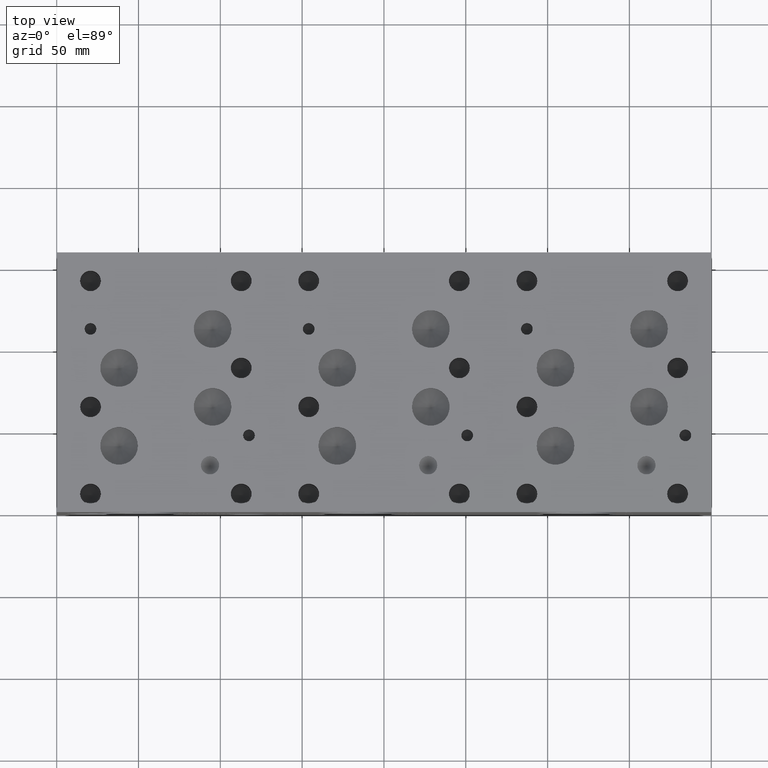
[diagram: clean part render]
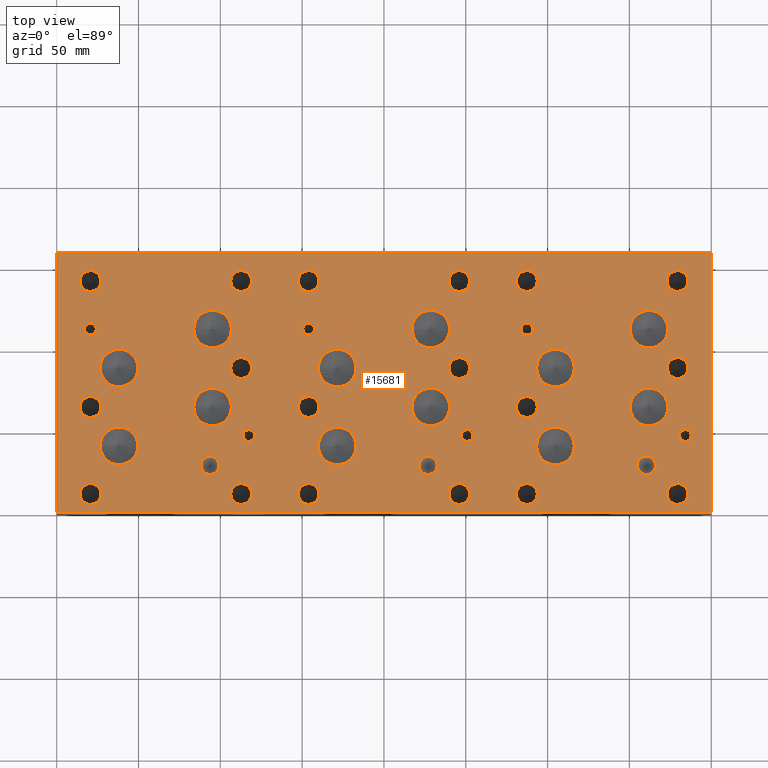
[diagram: same view with one face highlighted and labeled with its STEP entity id]
A machine part, top view. The second image highlights one B-rep face of the part: STEP entity #15681.
In plain terms, the highlighted planar face has unit normal (0, 0, 1).
Its self-contained STEP definition (entity closure, byte-faithful):
#486=CIRCLE('',#16111,5.5626);
#487=CIRCLE('',#16112,5.5626);
#490=CIRCLE('',#16117,5.5626);
#491=CIRCLE('',#16118,5.5626);
#713=CIRCLE('',#16497,5.55625);
#714=CIRCLE('',#16498,5.55625);
#717=CIRCLE('',#16503,11.50874);
#718=CIRCLE('',#16504,11.50874);
#721=CIRCLE('',#16509,11.5062);
#722=CIRCLE('',#16510,11.5062);
#725=CIRCLE('',#16515,11.5062);
#726=CIRCLE('',#16516,11.5062);
#729=CIRCLE('',#16521,11.5062);
#730=CIRCLE('',#16522,11.5062);
#733=CIRCLE('',#16527,11.5062);
#734=CIRCLE('',#16528,11.5062);
#737=CIRCLE('',#16533,11.5062);
#738=CIRCLE('',#16534,11.5062);
#741=CIRCLE('',#16539,11.5062);
#742=CIRCLE('',#16540,11.5062);
#745=CIRCLE('',#16545,11.5062);
#746=CIRCLE('',#16546,11.5062);
#749=CIRCLE('',#16551,11.5062);
#750=CIRCLE('',#16552,11.5062);
#753=CIRCLE('',#16557,11.5062);
#754=CIRCLE('',#16558,11.5062);
#757=CIRCLE('',#16563,11.5062);
#758=CIRCLE('',#16564,11.5062);
#761=CIRCLE('',#16569,11.5062);
#762=CIRCLE('',#16570,11.5062);
#765=CIRCLE('',#16575,3.5687);
#766=CIRCLE('',#16576,3.5687);
#769=CIRCLE('',#16581,3.5687);
#770=CIRCLE('',#16582,3.5687);
#773=CIRCLE('',#16587,3.5687);
#774=CIRCLE('',#16588,3.5687);
#777=CIRCLE('',#16593,3.5687);
#778=CIRCLE('',#16594,3.5687);
#781=CIRCLE('',#16599,3.5687);
#782=CIRCLE('',#16600,3.5687);
#785=CIRCLE('',#16605,3.5687);
#786=CIRCLE('',#16606,3.5687);
#792=CIRCLE('',#16615,6.35);
#793=CIRCLE('',#16616,6.35);
#799=CIRCLE('',#16626,6.35);
#800=CIRCLE('',#16627,6.35);
#806=CIRCLE('',#16637,6.35);
#807=CIRCLE('',#16638,6.35);
#813=CIRCLE('',#16648,6.35);
#814=CIRCLE('',#16649,6.35);
#820=CIRCLE('',#16659,6.35);
#821=CIRCLE('',#16660,6.35);
#827=CIRCLE('',#16670,6.35);
#828=CIRCLE('',#16671,6.35);
#834=CIRCLE('',#16681,6.35);
#835=CIRCLE('',#16682,6.35);
#841=CIRCLE('',#16692,6.35);
#842=CIRCLE('',#16693,6.35);
#848=CIRCLE('',#16703,6.35);
#849=CIRCLE('',#16704,6.35);
#855=CIRCLE('',#16714,6.35);
#856=CIRCLE('',#16715,6.35);
#862=CIRCLE('',#16725,6.35);
#863=CIRCLE('',#16726,6.35);
#869=CIRCLE('',#16736,6.35);
#870=CIRCLE('',#16737,6.35);
#876=CIRCLE('',#16747,6.35);
#877=CIRCLE('',#16748,6.35);
#883=CIRCLE('',#16758,6.35);
#884=CIRCLE('',#16759,6.35);
#890=CIRCLE('',#16769,6.35);
#891=CIRCLE('',#16770,6.35);
#897=CIRCLE('',#16780,6.35);
#898=CIRCLE('',#16781,6.35);
#904=CIRCLE('',#16791,6.35);
#905=CIRCLE('',#16792,6.35);
#911=CIRCLE('',#16802,6.35);
#912=CIRCLE('',#16803,6.35);
#1401=FACE_BOUND('',#3199,.T.);
#1402=FACE_BOUND('',#3200,.T.);
#1403=FACE_BOUND('',#3201,.T.);
#1404=FACE_BOUND('',#3202,.T.);
#1405=FACE_BOUND('',#3203,.T.);
#1406=FACE_BOUND('',#3204,.T.);
#1407=FACE_BOUND('',#3205,.T.);
#1408=FACE_BOUND('',#3206,.T.);
#1409=FACE_BOUND('',#3207,.T.);
#1410=FACE_BOUND('',#3208,.T.);
#1411=FACE_BOUND('',#3209,.T.);
#1412=FACE_BOUND('',#3210,.T.);
#1413=FACE_BOUND('',#3211,.T.);
#1414=FACE_BOUND('',#3212,.T.);
#1415=FACE_BOUND('',#3213,.T.);
#1416=FACE_BOUND('',#3214,.T.);
#1417=FACE_BOUND('',#3215,.T.);
#1418=FACE_BOUND('',#3216,.T.);
#1419=FACE_BOUND('',#3217,.T.);
#1420=FACE_BOUND('',#3218,.T.);
#1421=FACE_BOUND('',#3219,.T.);
#1422=FACE_BOUND('',#3220,.T.);
#1423=FACE_BOUND('',#3221,.T.);
#1424=FACE_BOUND('',#3222,.T.);
#1425=FACE_BOUND('',#3223,.T.);
#1426=FACE_BOUND('',#3224,.T.);
#1427=FACE_BOUND('',#3225,.T.);
#1428=FACE_BOUND('',#3226,.T.);
#1429=FACE_BOUND('',#3227,.T.);
#1430=FACE_BOUND('',#3228,.T.);
#1431=FACE_BOUND('',#3229,.T.);
#1432=FACE_BOUND('',#3230,.T.);
#1433=FACE_BOUND('',#3231,.T.);
#1434=FACE_BOUND('',#3232,.T.);
#1435=FACE_BOUND('',#3233,.T.);
#1436=FACE_BOUND('',#3234,.T.);
#1437=FACE_BOUND('',#3235,.T.);
#1438=FACE_BOUND('',#3236,.T.);
#1439=FACE_BOUND('',#3237,.T.);
#2261=FACE_OUTER_BOUND('',#3198,.T.);
#3198=EDGE_LOOP('',(#13855,#13856,#13857,#13858));
#3199=EDGE_LOOP('',(#13859,#13860));
#3200=EDGE_LOOP('',(#13861,#13862));
#3201=EDGE_LOOP('',(#13863,#13864));
#3202=EDGE_LOOP('',(#13865,#13866));
#3203=EDGE_LOOP('',(#13867,#13868));
#3204=EDGE_LOOP('',(#13869,#13870));
#3205=EDGE_LOOP('',(#13871,#13872));
#3206=EDGE_LOOP('',(#13873,#13874));
#3207=EDGE_LOOP('',(#13875,#13876));
#3208=EDGE_LOOP('',(#13877,#13878));
#3209=EDGE_LOOP('',(#13879,#13880));
#3210=EDGE_LOOP('',(#13881,#13882));
#3211=EDGE_LOOP('',(#13883,#13884));
#3212=EDGE_LOOP('',(#13885,#13886));
#3213=EDGE_LOOP('',(#13887,#13888));
#3214=EDGE_LOOP('',(#13889,#13890));
#3215=EDGE_LOOP('',(#13891,#13892));
#3216=EDGE_LOOP('',(#13893,#13894));
#3217=EDGE_LOOP('',(#13895,#13896));
#3218=EDGE_LOOP('',(#13897,#13898));
#3219=EDGE_LOOP('',(#13899,#13900));
#3220=EDGE_LOOP('',(#13901,#13902));
#3221=EDGE_LOOP('',(#13903,#13904));
#3222=EDGE_LOOP('',(#13905,#13906));
#3223=EDGE_LOOP('',(#13907,#13908));
#3224=EDGE_LOOP('',(#13909,#13910));
#3225=EDGE_LOOP('',(#13911,#13912));
#3226=EDGE_LOOP('',(#13913,#13914));
#3227=EDGE_LOOP('',(#13915,#13916));
#3228=EDGE_LOOP('',(#13917,#13918));
#3229=EDGE_LOOP('',(#13919,#13920));
#3230=EDGE_LOOP('',(#13921,#13922));
#3231=EDGE_LOOP('',(#13923,#13924));
#3232=EDGE_LOOP('',(#13925,#13926));
#3233=EDGE_LOOP('',(#13927,#13928));
#3234=EDGE_LOOP('',(#13929,#13930));
#3235=EDGE_LOOP('',(#13931,#13932));
#3236=EDGE_LOOP('',(#13933,#13934));
#3237=EDGE_LOOP('',(#13935,#13936));
#3274=LINE('',#20443,#4601);
#4246=LINE('',#25506,#5573);
#4304=LINE('',#25777,#5631);
#4565=LINE('',#27308,#5892);
#4601=VECTOR('',#16874,10.);
#5573=VECTOR('',#18496,10.);
#5631=VECTOR('',#18608,10.);
#5892=VECTOR('',#20359,10.);
#5917=VERTEX_POINT('',#20440);
#5918=VERTEX_POINT('',#20442);
#6820=VERTEX_POINT('',#25504);
#6878=VERTEX_POINT('',#25776);
#6924=VERTEX_POINT('',#25907);
#6925=VERTEX_POINT('',#25908);
#6929=VERTEX_POINT('',#25920);
#6930=VERTEX_POINT('',#25921);
#7168=VERTEX_POINT('',#26670);
#7169=VERTEX_POINT('',#26671);
#7173=VERTEX_POINT('',#26683);
#7174=VERTEX_POINT('',#26684);
#7178=VERTEX_POINT('',#26696);
#7179=VERTEX_POINT('',#26697);
#7183=VERTEX_POINT('',#26709);
#7184=VERTEX_POINT('',#26710);
#7188=VERTEX_POINT('',#26722);
#7189=VERTEX_POINT('',#26723);
#7193=VERTEX_POINT('',#26735);
#7194=VERTEX_POINT('',#26736);
#7198=VERTEX_POINT('',#26748);
#7199=VERTEX_POINT('',#26749);
#7203=VERTEX_POINT('',#26761);
#7204=VERTEX_POINT('',#26762);
#7208=VERTEX_POINT('',#26774);
#7209=VERTEX_POINT('',#26775);
#7213=VERTEX_POINT('',#26787);
#7214=VERTEX_POINT('',#26788);
#7218=VERTEX_POINT('',#26800);
#7219=VERTEX_POINT('',#26801);
#7223=VERTEX_POINT('',#26813);
#7224=VERTEX_POINT('',#26814);
#7228=VERTEX_POINT('',#26826);
#7229=VERTEX_POINT('',#26827);
#7233=VERTEX_POINT('',#26839);
#7234=VERTEX_POINT('',#26840);
#7238=VERTEX_POINT('',#26852);
#7239=VERTEX_POINT('',#26853);
#7243=VERTEX_POINT('',#26865);
#7244=VERTEX_POINT('',#26866);
#7248=VERTEX_POINT('',#26878);
#7249=VERTEX_POINT('',#26879);
#7253=VERTEX_POINT('',#26891);
#7254=VERTEX_POINT('',#26892);
#7258=VERTEX_POINT('',#26904);
#7259=VERTEX_POINT('',#26905);
#7266=VERTEX_POINT('',#26924);
#7267=VERTEX_POINT('',#26925);
#7274=VERTEX_POINT('',#26946);
#7275=VERTEX_POINT('',#26947);
#7282=VERTEX_POINT('',#26968);
#7283=VERTEX_POINT('',#26969);
#7290=VERTEX_POINT('',#26990);
#7291=VERTEX_POINT('',#26991);
#7298=VERTEX_POINT('',#27012);
#7299=VERTEX_POINT('',#27013);
#7306=VERTEX_POINT('',#27034);
#7307=VERTEX_POINT('',#27035);
#7314=VERTEX_POINT('',#27056);
#7315=VERTEX_POINT('',#27057);
#7322=VERTEX_POINT('',#27078);
#7323=VERTEX_POINT('',#27079);
#7330=VERTEX_POINT('',#27100);
#7331=VERTEX_POINT('',#27101);
#7338=VERTEX_POINT('',#27122);
#7339=VERTEX_POINT('',#27123);
#7346=VERTEX_POINT('',#27144);
#7347=VERTEX_POINT('',#27145);
#7354=VERTEX_POINT('',#27166);
#7355=VERTEX_POINT('',#27167);
#7362=VERTEX_POINT('',#27188);
#7363=VERTEX_POINT('',#27189);
#7370=VERTEX_POINT('',#27210);
#7371=VERTEX_POINT('',#27211);
#7378=VERTEX_POINT('',#27232);
#7379=VERTEX_POINT('',#27233);
#7386=VERTEX_POINT('',#27254);
#7387=VERTEX_POINT('',#27255);
#7394=VERTEX_POINT('',#27276);
#7395=VERTEX_POINT('',#27277);
#7402=VERTEX_POINT('',#27298);
#7403=VERTEX_POINT('',#27299);
#7439=EDGE_CURVE('',#5918,#5917,#3274,.T.);
#8785=EDGE_CURVE('',#5917,#6820,#4246,.T.);
#8867=EDGE_CURVE('',#6878,#5918,#4304,.T.);
#8930=EDGE_CURVE('',#6924,#6925,#486,.T.);
#8931=EDGE_CURVE('',#6925,#6924,#487,.T.);
#8936=EDGE_CURVE('',#6929,#6930,#490,.T.);
#8937=EDGE_CURVE('',#6930,#6929,#491,.T.);
#9290=EDGE_CURVE('',#7168,#7169,#713,.T.);
#9291=EDGE_CURVE('',#7169,#7168,#714,.T.);
#9296=EDGE_CURVE('',#7173,#7174,#717,.T.);
#9297=EDGE_CURVE('',#7174,#7173,#718,.T.);
#9302=EDGE_CURVE('',#7178,#7179,#721,.T.);
#9303=EDGE_CURVE('',#7179,#7178,#722,.T.);
#9308=EDGE_CURVE('',#7183,#7184,#725,.T.);
#9309=EDGE_CURVE('',#7184,#7183,#726,.T.);
#9314=EDGE_CURVE('',#7188,#7189,#729,.T.);
#9315=EDGE_CURVE('',#7189,#7188,#730,.T.);
#9320=EDGE_CURVE('',#7193,#7194,#733,.T.);
#9321=EDGE_CURVE('',#7194,#7193,#734,.T.);
#9326=EDGE_CURVE('',#7198,#7199,#737,.T.);
#9327=EDGE_CURVE('',#7199,#7198,#738,.T.);
#9332=EDGE_CURVE('',#7203,#7204,#741,.T.);
#9333=EDGE_CURVE('',#7204,#7203,#742,.T.);
#9338=EDGE_CURVE('',#7208,#7209,#745,.T.);
#9339=EDGE_CURVE('',#7209,#7208,#746,.T.);
#9344=EDGE_CURVE('',#7213,#7214,#749,.T.);
#9345=EDGE_CURVE('',#7214,#7213,#750,.T.);
#9350=EDGE_CURVE('',#7218,#7219,#753,.T.);
#9351=EDGE_CURVE('',#7219,#7218,#754,.T.);
#9356=EDGE_CURVE('',#7223,#7224,#757,.T.);
#9357=EDGE_CURVE('',#7224,#7223,#758,.T.);
#9362=EDGE_CURVE('',#7228,#7229,#761,.T.);
#9363=EDGE_CURVE('',#7229,#7228,#762,.T.);
#9368=EDGE_CURVE('',#7233,#7234,#765,.T.);
#9369=EDGE_CURVE('',#7234,#7233,#766,.T.);
#9374=EDGE_CURVE('',#7238,#7239,#769,.T.);
#9375=EDGE_CURVE('',#7239,#7238,#770,.T.);
#9380=EDGE_CURVE('',#7243,#7244,#773,.T.);
#9381=EDGE_CURVE('',#7244,#7243,#774,.T.);
#9386=EDGE_CURVE('',#7248,#7249,#777,.T.);
#9387=EDGE_CURVE('',#7249,#7248,#778,.T.);
#9392=EDGE_CURVE('',#7253,#7254,#781,.T.);
#9393=EDGE_CURVE('',#7254,#7253,#782,.T.);
#9398=EDGE_CURVE('',#7258,#7259,#785,.T.);
#9399=EDGE_CURVE('',#7259,#7258,#786,.T.);
#9407=EDGE_CURVE('',#7266,#7267,#792,.T.);
#9408=EDGE_CURVE('',#7267,#7266,#793,.T.);
#9417=EDGE_CURVE('',#7274,#7275,#799,.T.);
#9418=EDGE_CURVE('',#7275,#7274,#800,.T.);
#9427=EDGE_CURVE('',#7282,#7283,#806,.T.);
#9428=EDGE_CURVE('',#7283,#7282,#807,.T.);
#9437=EDGE_CURVE('',#7290,#7291,#813,.T.);
#9438=EDGE_CURVE('',#7291,#7290,#814,.T.);
#9447=EDGE_CURVE('',#7298,#7299,#820,.T.);
#9448=EDGE_CURVE('',#7299,#7298,#821,.T.);
#9457=EDGE_CURVE('',#7306,#7307,#827,.T.);
#9458=EDGE_CURVE('',#7307,#7306,#828,.T.);
#9467=EDGE_CURVE('',#7314,#7315,#834,.T.);
#9468=EDGE_CURVE('',#7315,#7314,#835,.T.);
#9477=EDGE_CURVE('',#7322,#7323,#841,.T.);
#9478=EDGE_CURVE('',#7323,#7322,#842,.T.);
#9487=EDGE_CURVE('',#7330,#7331,#848,.T.);
#9488=EDGE_CURVE('',#7331,#7330,#849,.T.);
#9497=EDGE_CURVE('',#7338,#7339,#855,.T.);
#9498=EDGE_CURVE('',#7339,#7338,#856,.T.);
#9507=EDGE_CURVE('',#7346,#7347,#862,.T.);
#9508=EDGE_CURVE('',#7347,#7346,#863,.T.);
#9517=EDGE_CURVE('',#7354,#7355,#869,.T.);
#9518=EDGE_CURVE('',#7355,#7354,#870,.T.);
#9527=EDGE_CURVE('',#7362,#7363,#876,.T.);
#9528=EDGE_CURVE('',#7363,#7362,#877,.T.);
#9537=EDGE_CURVE('',#7370,#7371,#883,.T.);
#9538=EDGE_CURVE('',#7371,#7370,#884,.T.);
#9547=EDGE_CURVE('',#7378,#7379,#890,.T.);
#9548=EDGE_CURVE('',#7379,#7378,#891,.T.);
#9557=EDGE_CURVE('',#7386,#7387,#897,.T.);
#9558=EDGE_CURVE('',#7387,#7386,#898,.T.);
#9567=EDGE_CURVE('',#7394,#7395,#904,.T.);
#9568=EDGE_CURVE('',#7395,#7394,#905,.T.);
#9577=EDGE_CURVE('',#7402,#7403,#911,.T.);
#9578=EDGE_CURVE('',#7403,#7402,#912,.T.);
#9582=EDGE_CURVE('',#6820,#6878,#4565,.T.);
#13855=ORIENTED_EDGE('',*,*,#7439,.T.);
#13856=ORIENTED_EDGE('',*,*,#8785,.T.);
#13857=ORIENTED_EDGE('',*,*,#9582,.T.);
#13858=ORIENTED_EDGE('',*,*,#8867,.T.);
#13859=ORIENTED_EDGE('',*,*,#8930,.T.);
#13860=ORIENTED_EDGE('',*,*,#8931,.T.);
#13861=ORIENTED_EDGE('',*,*,#8936,.T.);
#13862=ORIENTED_EDGE('',*,*,#8937,.T.);
#13863=ORIENTED_EDGE('',*,*,#9290,.T.);
#13864=ORIENTED_EDGE('',*,*,#9291,.T.);
#13865=ORIENTED_EDGE('',*,*,#9296,.T.);
#13866=ORIENTED_EDGE('',*,*,#9297,.T.);
#13867=ORIENTED_EDGE('',*,*,#9302,.T.);
#13868=ORIENTED_EDGE('',*,*,#9303,.T.);
#13869=ORIENTED_EDGE('',*,*,#9308,.T.);
#13870=ORIENTED_EDGE('',*,*,#9309,.T.);
#13871=ORIENTED_EDGE('',*,*,#9314,.T.);
#13872=ORIENTED_EDGE('',*,*,#9315,.T.);
#13873=ORIENTED_EDGE('',*,*,#9320,.T.);
#13874=ORIENTED_EDGE('',*,*,#9321,.T.);
#13875=ORIENTED_EDGE('',*,*,#9326,.T.);
#13876=ORIENTED_EDGE('',*,*,#9327,.T.);
#13877=ORIENTED_EDGE('',*,*,#9332,.T.);
#13878=ORIENTED_EDGE('',*,*,#9333,.T.);
#13879=ORIENTED_EDGE('',*,*,#9338,.T.);
#13880=ORIENTED_EDGE('',*,*,#9339,.T.);
#13881=ORIENTED_EDGE('',*,*,#9344,.T.);
#13882=ORIENTED_EDGE('',*,*,#9345,.T.);
#13883=ORIENTED_EDGE('',*,*,#9350,.T.);
#13884=ORIENTED_EDGE('',*,*,#9351,.T.);
#13885=ORIENTED_EDGE('',*,*,#9356,.T.);
#13886=ORIENTED_EDGE('',*,*,#9357,.T.);
#13887=ORIENTED_EDGE('',*,*,#9362,.T.);
#13888=ORIENTED_EDGE('',*,*,#9363,.T.);
#13889=ORIENTED_EDGE('',*,*,#9368,.T.);
#13890=ORIENTED_EDGE('',*,*,#9369,.T.);
#13891=ORIENTED_EDGE('',*,*,#9374,.T.);
#13892=ORIENTED_EDGE('',*,*,#9375,.T.);
#13893=ORIENTED_EDGE('',*,*,#9380,.T.);
#13894=ORIENTED_EDGE('',*,*,#9381,.T.);
#13895=ORIENTED_EDGE('',*,*,#9386,.T.);
#13896=ORIENTED_EDGE('',*,*,#9387,.T.);
#13897=ORIENTED_EDGE('',*,*,#9392,.T.);
#13898=ORIENTED_EDGE('',*,*,#9393,.T.);
#13899=ORIENTED_EDGE('',*,*,#9398,.T.);
#13900=ORIENTED_EDGE('',*,*,#9399,.T.);
#13901=ORIENTED_EDGE('',*,*,#9407,.T.);
#13902=ORIENTED_EDGE('',*,*,#9408,.T.);
#13903=ORIENTED_EDGE('',*,*,#9417,.T.);
#13904=ORIENTED_EDGE('',*,*,#9418,.T.);
#13905=ORIENTED_EDGE('',*,*,#9427,.T.);
#13906=ORIENTED_EDGE('',*,*,#9428,.T.);
#13907=ORIENTED_EDGE('',*,*,#9437,.T.);
#13908=ORIENTED_EDGE('',*,*,#9438,.T.);
#13909=ORIENTED_EDGE('',*,*,#9447,.T.);
#13910=ORIENTED_EDGE('',*,*,#9448,.T.);
#13911=ORIENTED_EDGE('',*,*,#9457,.T.);
#13912=ORIENTED_EDGE('',*,*,#9458,.T.);
#13913=ORIENTED_EDGE('',*,*,#9467,.T.);
#13914=ORIENTED_EDGE('',*,*,#9468,.T.);
#13915=ORIENTED_EDGE('',*,*,#9477,.T.);
#13916=ORIENTED_EDGE('',*,*,#9478,.T.);
#13917=ORIENTED_EDGE('',*,*,#9487,.T.);
#13918=ORIENTED_EDGE('',*,*,#9488,.T.);
#13919=ORIENTED_EDGE('',*,*,#9497,.T.);
#13920=ORIENTED_EDGE('',*,*,#9498,.T.);
#13921=ORIENTED_EDGE('',*,*,#9507,.T.);
#13922=ORIENTED_EDGE('',*,*,#9508,.T.);
#13923=ORIENTED_EDGE('',*,*,#9517,.T.);
#13924=ORIENTED_EDGE('',*,*,#9518,.T.);
#13925=ORIENTED_EDGE('',*,*,#9527,.T.);
#13926=ORIENTED_EDGE('',*,*,#9528,.T.);
#13927=ORIENTED_EDGE('',*,*,#9537,.T.);
#13928=ORIENTED_EDGE('',*,*,#9538,.T.);
#13929=ORIENTED_EDGE('',*,*,#9547,.T.);
#13930=ORIENTED_EDGE('',*,*,#9548,.T.);
#13931=ORIENTED_EDGE('',*,*,#9557,.T.);
#13932=ORIENTED_EDGE('',*,*,#9558,.T.);
#13933=ORIENTED_EDGE('',*,*,#9567,.T.);
#13934=ORIENTED_EDGE('',*,*,#9568,.T.);
#13935=ORIENTED_EDGE('',*,*,#9577,.T.);
#13936=ORIENTED_EDGE('',*,*,#9578,.T.);
#14341=PLANE('',#16809);
#15681=ADVANCED_FACE('',(#2261,#1401,#1402,#1403,#1404,#1405,#1406,#1407,
#1408,#1409,#1410,#1411,#1412,#1413,#1414,#1415,#1416,#1417,#1418,#1419,
#1420,#1421,#1422,#1423,#1424,#1425,#1426,#1427,#1428,#1429,#1430,#1431,
#1432,#1433,#1434,#1435,#1436,#1437,#1438,#1439),#14341,.T.);
#16111=AXIS2_PLACEMENT_3D('',#25909,#18742,#18743);
#16112=AXIS2_PLACEMENT_3D('',#25910,#18744,#18745);
#16117=AXIS2_PLACEMENT_3D('',#25922,#18756,#18757);
#16118=AXIS2_PLACEMENT_3D('',#25923,#18758,#18759);
#16497=AXIS2_PLACEMENT_3D('',#26672,#19647,#19648);
#16498=AXIS2_PLACEMENT_3D('',#26673,#19649,#19650);
#16503=AXIS2_PLACEMENT_3D('',#26685,#19661,#19662);
#16504=AXIS2_PLACEMENT_3D('',#26686,#19663,#19664);
#16509=AXIS2_PLACEMENT_3D('',#26698,#19675,#19676);
#16510=AXIS2_PLACEMENT_3D('',#26699,#19677,#19678);
#16515=AXIS2_PLACEMENT_3D('',#26711,#19689,#19690);
#16516=AXIS2_PLACEMENT_3D('',#26712,#19691,#19692);
#16521=AXIS2_PLACEMENT_3D('',#26724,#19703,#19704);
#16522=AXIS2_PLACEMENT_3D('',#26725,#19705,#19706);
#16527=AXIS2_PLACEMENT_3D('',#26737,#19717,#19718);
#16528=AXIS2_PLACEMENT_3D('',#26738,#19719,#19720);
#16533=AXIS2_PLACEMENT_3D('',#26750,#19731,#19732);
#16534=AXIS2_PLACEMENT_3D('',#26751,#19733,#19734);
#16539=AXIS2_PLACEMENT_3D('',#26763,#19745,#19746);
#16540=AXIS2_PLACEMENT_3D('',#26764,#19747,#19748);
#16545=AXIS2_PLACEMENT_3D('',#26776,#19759,#19760);
#16546=AXIS2_PLACEMENT_3D('',#26777,#19761,#19762);
#16551=AXIS2_PLACEMENT_3D('',#26789,#19773,#19774);
#16552=AXIS2_PLACEMENT_3D('',#26790,#19775,#19776);
#16557=AXIS2_PLACEMENT_3D('',#26802,#19787,#19788);
#16558=AXIS2_PLACEMENT_3D('',#26803,#19789,#19790);
#16563=AXIS2_PLACEMENT_3D('',#26815,#19801,#19802);
#16564=AXIS2_PLACEMENT_3D('',#26816,#19803,#19804);
#16569=AXIS2_PLACEMENT_3D('',#26828,#19815,#19816);
#16570=AXIS2_PLACEMENT_3D('',#26829,#19817,#19818);
#16575=AXIS2_PLACEMENT_3D('',#26841,#19829,#19830);
#16576=AXIS2_PLACEMENT_3D('',#26842,#19831,#19832);
#16581=AXIS2_PLACEMENT_3D('',#26854,#19843,#19844);
#16582=AXIS2_PLACEMENT_3D('',#26855,#19845,#19846);
#16587=AXIS2_PLACEMENT_3D('',#26867,#19857,#19858);
#16588=AXIS2_PLACEMENT_3D('',#26868,#19859,#19860);
#16593=AXIS2_PLACEMENT_3D('',#26880,#19871,#19872);
#16594=AXIS2_PLACEMENT_3D('',#26881,#19873,#19874);
#16599=AXIS2_PLACEMENT_3D('',#26893,#19885,#19886);
#16600=AXIS2_PLACEMENT_3D('',#26894,#19887,#19888);
#16605=AXIS2_PLACEMENT_3D('',#26906,#19899,#19900);
#16606=AXIS2_PLACEMENT_3D('',#26907,#19901,#19902);
#16615=AXIS2_PLACEMENT_3D('',#26926,#19921,#19922);
#16616=AXIS2_PLACEMENT_3D('',#26927,#19923,#19924);
#16626=AXIS2_PLACEMENT_3D('',#26948,#19946,#19947);
#16627=AXIS2_PLACEMENT_3D('',#26949,#19948,#19949);
#16637=AXIS2_PLACEMENT_3D('',#26970,#19971,#19972);
#16638=AXIS2_PLACEMENT_3D('',#26971,#19973,#19974);
#16648=AXIS2_PLACEMENT_3D('',#26992,#19996,#19997);
#16649=AXIS2_PLACEMENT_3D('',#26993,#19998,#19999);
#16659=AXIS2_PLACEMENT_3D('',#27014,#20021,#20022);
#16660=AXIS2_PLACEMENT_3D('',#27015,#20023,#20024);
#16670=AXIS2_PLACEMENT_3D('',#27036,#20046,#20047);
#16671=AXIS2_PLACEMENT_3D('',#27037,#20048,#20049);
#16681=AXIS2_PLACEMENT_3D('',#27058,#20071,#20072);
#16682=AXIS2_PLACEMENT_3D('',#27059,#20073,#20074);
#16692=AXIS2_PLACEMENT_3D('',#27080,#20096,#20097);
#16693=AXIS2_PLACEMENT_3D('',#27081,#20098,#20099);
#16703=AXIS2_PLACEMENT_3D('',#27102,#20121,#20122);
#16704=AXIS2_PLACEMENT_3D('',#27103,#20123,#20124);
#16714=AXIS2_PLACEMENT_3D('',#27124,#20146,#20147);
#16715=AXIS2_PLACEMENT_3D('',#27125,#20148,#20149);
#16725=AXIS2_PLACEMENT_3D('',#27146,#20171,#20172);
#16726=AXIS2_PLACEMENT_3D('',#27147,#20173,#20174);
#16736=AXIS2_PLACEMENT_3D('',#27168,#20196,#20197);
#16737=AXIS2_PLACEMENT_3D('',#27169,#20198,#20199);
#16747=AXIS2_PLACEMENT_3D('',#27190,#20221,#20222);
#16748=AXIS2_PLACEMENT_3D('',#27191,#20223,#20224);
#16758=AXIS2_PLACEMENT_3D('',#27212,#20246,#20247);
#16759=AXIS2_PLACEMENT_3D('',#27213,#20248,#20249);
#16769=AXIS2_PLACEMENT_3D('',#27234,#20271,#20272);
#16770=AXIS2_PLACEMENT_3D('',#27235,#20273,#20274);
#16780=AXIS2_PLACEMENT_3D('',#27256,#20296,#20297);
#16781=AXIS2_PLACEMENT_3D('',#27257,#20298,#20299);
#16791=AXIS2_PLACEMENT_3D('',#27278,#20321,#20322);
#16792=AXIS2_PLACEMENT_3D('',#27279,#20323,#20324);
#16802=AXIS2_PLACEMENT_3D('',#27300,#20346,#20347);
#16803=AXIS2_PLACEMENT_3D('',#27301,#20348,#20349);
#16809=AXIS2_PLACEMENT_3D('',#27311,#20364,#20365);
#16874=DIRECTION('',(1.,0.,0.));
#18496=DIRECTION('',(0.,1.,0.));
#18608=DIRECTION('',(0.,-1.,0.));
#18742=DIRECTION('center_axis',(0.,0.,-1.));
#18743=DIRECTION('ref_axis',(1.,0.,0.));
#18744=DIRECTION('center_axis',(0.,0.,-1.));
#18745=DIRECTION('ref_axis',(1.,0.,0.));
#18756=DIRECTION('center_axis',(0.,0.,-1.));
#18757=DIRECTION('ref_axis',(1.,0.,0.));
#18758=DIRECTION('center_axis',(0.,0.,-1.));
#18759=DIRECTION('ref_axis',(1.,0.,0.));
#19647=DIRECTION('center_axis',(0.,0.,-1.));
#19648=DIRECTION('ref_axis',(1.,0.,0.));
#19649=DIRECTION('center_axis',(0.,0.,-1.));
#19650=DIRECTION('ref_axis',(1.,0.,0.));
#19661=DIRECTION('center_axis',(0.,0.,-1.));
#19662=DIRECTION('ref_axis',(1.,0.,0.));
#19663=DIRECTION('center_axis',(0.,0.,-1.));
#19664=DIRECTION('ref_axis',(1.,0.,0.));
#19675=DIRECTION('center_axis',(0.,0.,-1.));
#19676=DIRECTION('ref_axis',(1.,0.,0.));
#19677=DIRECTION('center_axis',(0.,0.,-1.));
#19678=DIRECTION('ref_axis',(1.,0.,0.));
#19689=DIRECTION('center_axis',(0.,0.,-1.));
#19690=DIRECTION('ref_axis',(1.,0.,0.));
#19691=DIRECTION('center_axis',(0.,0.,-1.));
#19692=DIRECTION('ref_axis',(1.,0.,0.));
#19703=DIRECTION('center_axis',(0.,0.,-1.));
#19704=DIRECTION('ref_axis',(1.,0.,0.));
#19705=DIRECTION('center_axis',(0.,0.,-1.));
#19706=DIRECTION('ref_axis',(1.,0.,0.));
#19717=DIRECTION('center_axis',(0.,0.,-1.));
#19718=DIRECTION('ref_axis',(1.,0.,0.));
#19719=DIRECTION('center_axis',(0.,0.,-1.));
#19720=DIRECTION('ref_axis',(1.,0.,0.));
#19731=DIRECTION('center_axis',(0.,0.,-1.));
#19732=DIRECTION('ref_axis',(1.,0.,0.));
#19733=DIRECTION('center_axis',(0.,0.,-1.));
#19734=DIRECTION('ref_axis',(1.,0.,0.));
#19745=DIRECTION('center_axis',(0.,0.,-1.));
#19746=DIRECTION('ref_axis',(1.,0.,0.));
#19747=DIRECTION('center_axis',(0.,0.,-1.));
#19748=DIRECTION('ref_axis',(1.,0.,0.));
#19759=DIRECTION('center_axis',(0.,0.,-1.));
#19760=DIRECTION('ref_axis',(1.,0.,0.));
#19761=DIRECTION('center_axis',(0.,0.,-1.));
#19762=DIRECTION('ref_axis',(1.,0.,0.));
#19773=DIRECTION('center_axis',(0.,0.,-1.));
#19774=DIRECTION('ref_axis',(1.,0.,0.));
#19775=DIRECTION('center_axis',(0.,0.,-1.));
#19776=DIRECTION('ref_axis',(1.,0.,0.));
#19787=DIRECTION('center_axis',(0.,0.,-1.));
#19788=DIRECTION('ref_axis',(1.,0.,0.));
#19789=DIRECTION('center_axis',(0.,0.,-1.));
#19790=DIRECTION('ref_axis',(1.,0.,0.));
#19801=DIRECTION('center_axis',(0.,0.,-1.));
#19802=DIRECTION('ref_axis',(1.,0.,0.));
#19803=DIRECTION('center_axis',(0.,0.,-1.));
#19804=DIRECTION('ref_axis',(1.,0.,0.));
#19815=DIRECTION('center_axis',(0.,0.,-1.));
#19816=DIRECTION('ref_axis',(1.,0.,0.));
#19817=DIRECTION('center_axis',(0.,0.,-1.));
#19818=DIRECTION('ref_axis',(1.,0.,0.));
#19829=DIRECTION('center_axis',(0.,0.,-1.));
#19830=DIRECTION('ref_axis',(1.,0.,0.));
#19831=DIRECTION('center_axis',(0.,0.,-1.));
#19832=DIRECTION('ref_axis',(1.,0.,0.));
#19843=DIRECTION('center_axis',(0.,0.,-1.));
#19844=DIRECTION('ref_axis',(1.,0.,0.));
#19845=DIRECTION('center_axis',(0.,0.,-1.));
#19846=DIRECTION('ref_axis',(1.,0.,0.));
#19857=DIRECTION('center_axis',(0.,0.,-1.));
#19858=DIRECTION('ref_axis',(1.,0.,0.));
#19859=DIRECTION('center_axis',(0.,0.,-1.));
#19860=DIRECTION('ref_axis',(1.,0.,0.));
#19871=DIRECTION('center_axis',(0.,0.,-1.));
#19872=DIRECTION('ref_axis',(1.,0.,0.));
#19873=DIRECTION('center_axis',(0.,0.,-1.));
#19874=DIRECTION('ref_axis',(1.,0.,0.));
#19885=DIRECTION('center_axis',(0.,0.,-1.));
#19886=DIRECTION('ref_axis',(1.,0.,0.));
#19887=DIRECTION('center_axis',(0.,0.,-1.));
#19888=DIRECTION('ref_axis',(1.,0.,0.));
#19899=DIRECTION('center_axis',(0.,0.,-1.));
#19900=DIRECTION('ref_axis',(1.,0.,0.));
#19901=DIRECTION('center_axis',(0.,0.,-1.));
#19902=DIRECTION('ref_axis',(1.,0.,0.));
#19921=DIRECTION('center_axis',(0.,0.,-1.));
#19922=DIRECTION('ref_axis',(1.,0.,0.));
#19923=DIRECTION('center_axis',(0.,0.,-1.));
#19924=DIRECTION('ref_axis',(1.,0.,0.));
#19946=DIRECTION('center_axis',(0.,0.,-1.));
#19947=DIRECTION('ref_axis',(1.,0.,0.));
#19948=DIRECTION('center_axis',(0.,0.,-1.));
#19949=DIRECTION('ref_axis',(1.,0.,0.));
#19971=DIRECTION('center_axis',(0.,0.,-1.));
#19972=DIRECTION('ref_axis',(1.,0.,0.));
#19973=DIRECTION('center_axis',(0.,0.,-1.));
#19974=DIRECTION('ref_axis',(1.,0.,0.));
#19996=DIRECTION('center_axis',(0.,0.,-1.));
#19997=DIRECTION('ref_axis',(1.,0.,0.));
#19998=DIRECTION('center_axis',(0.,0.,-1.));
#19999=DIRECTION('ref_axis',(1.,0.,0.));
#20021=DIRECTION('center_axis',(0.,0.,-1.));
#20022=DIRECTION('ref_axis',(1.,0.,0.));
#20023=DIRECTION('center_axis',(0.,0.,-1.));
#20024=DIRECTION('ref_axis',(1.,0.,0.));
#20046=DIRECTION('center_axis',(0.,0.,-1.));
#20047=DIRECTION('ref_axis',(1.,0.,0.));
#20048=DIRECTION('center_axis',(0.,0.,-1.));
#20049=DIRECTION('ref_axis',(1.,0.,0.));
#20071=DIRECTION('center_axis',(0.,0.,-1.));
#20072=DIRECTION('ref_axis',(1.,0.,0.));
#20073=DIRECTION('center_axis',(0.,0.,-1.));
#20074=DIRECTION('ref_axis',(1.,0.,0.));
#20096=DIRECTION('center_axis',(0.,0.,-1.));
#20097=DIRECTION('ref_axis',(1.,0.,0.));
#20098=DIRECTION('center_axis',(0.,0.,-1.));
#20099=DIRECTION('ref_axis',(1.,0.,0.));
#20121=DIRECTION('center_axis',(0.,0.,-1.));
#20122=DIRECTION('ref_axis',(1.,0.,0.));
#20123=DIRECTION('center_axis',(0.,0.,-1.));
#20124=DIRECTION('ref_axis',(1.,0.,0.));
#20146=DIRECTION('center_axis',(0.,0.,-1.));
#20147=DIRECTION('ref_axis',(1.,0.,0.));
#20148=DIRECTION('center_axis',(0.,0.,-1.));
#20149=DIRECTION('ref_axis',(1.,0.,0.));
#20171=DIRECTION('center_axis',(0.,0.,-1.));
#20172=DIRECTION('ref_axis',(1.,0.,0.));
#20173=DIRECTION('center_axis',(0.,0.,-1.));
#20174=DIRECTION('ref_axis',(1.,0.,0.));
#20196=DIRECTION('center_axis',(0.,0.,-1.));
#20197=DIRECTION('ref_axis',(1.,0.,0.));
#20198=DIRECTION('center_axis',(0.,0.,-1.));
#20199=DIRECTION('ref_axis',(1.,0.,0.));
#20221=DIRECTION('center_axis',(0.,0.,-1.));
#20222=DIRECTION('ref_axis',(1.,0.,0.));
#20223=DIRECTION('center_axis',(0.,0.,-1.));
#20224=DIRECTION('ref_axis',(1.,0.,0.));
#20246=DIRECTION('center_axis',(0.,0.,-1.));
#20247=DIRECTION('ref_axis',(1.,0.,0.));
#20248=DIRECTION('center_axis',(0.,0.,-1.));
#20249=DIRECTION('ref_axis',(1.,0.,0.));
#20271=DIRECTION('center_axis',(0.,0.,-1.));
#20272=DIRECTION('ref_axis',(1.,0.,0.));
#20273=DIRECTION('center_axis',(0.,0.,-1.));
#20274=DIRECTION('ref_axis',(1.,0.,0.));
#20296=DIRECTION('center_axis',(0.,0.,-1.));
#20297=DIRECTION('ref_axis',(1.,0.,0.));
#20298=DIRECTION('center_axis',(0.,0.,-1.));
#20299=DIRECTION('ref_axis',(1.,0.,0.));
#20321=DIRECTION('center_axis',(0.,0.,-1.));
#20322=DIRECTION('ref_axis',(1.,0.,0.));
#20323=DIRECTION('center_axis',(0.,0.,-1.));
#20324=DIRECTION('ref_axis',(1.,0.,0.));
#20346=DIRECTION('center_axis',(0.,0.,-1.));
#20347=DIRECTION('ref_axis',(1.,0.,0.));
#20348=DIRECTION('center_axis',(0.,0.,-1.));
#20349=DIRECTION('ref_axis',(1.,0.,0.));
#20359=DIRECTION('',(-1.,0.,0.));
#20364=DIRECTION('center_axis',(0.,0.,1.));
#20365=DIRECTION('ref_axis',(1.,0.,0.));
#20440=CARTESIAN_POINT('',(400.05,0.,120.65));
#20442=CARTESIAN_POINT('',(0.,0.,120.65));
#20443=CARTESIAN_POINT('',(0.,0.,120.65));
#25504=CARTESIAN_POINT('',(400.05,158.75,120.65));
#25506=CARTESIAN_POINT('',(400.05,0.,120.65));
#25776=CARTESIAN_POINT('',(0.,158.75,120.65));
#25777=CARTESIAN_POINT('',(0.,158.75,120.65));
#25907=CARTESIAN_POINT('',(232.5624,28.575,120.65));
#25908=CARTESIAN_POINT('',(221.4372,28.575,120.65));
#25909=CARTESIAN_POINT('Origin',(226.9998,28.575,120.65));
#25910=CARTESIAN_POINT('Origin',(226.9998,28.575,120.65));
#25920=CARTESIAN_POINT('',(365.9124,28.575,120.65));
#25921=CARTESIAN_POINT('',(354.7872,28.575,120.65));
#25922=CARTESIAN_POINT('Origin',(360.3498,28.575,120.65));
#25923=CARTESIAN_POINT('Origin',(360.3498,28.575,120.65));
#26670=CARTESIAN_POINT('',(99.21875,28.56992,120.65));
#26671=CARTESIAN_POINT('',(88.10625,28.56992,120.65));
#26672=CARTESIAN_POINT('Origin',(93.6625,28.56992,120.65));
#26673=CARTESIAN_POINT('Origin',(93.6625,28.56992,120.65));
#26683=CARTESIAN_POINT('',(106.75874,111.9124,120.65));
#26684=CARTESIAN_POINT('',(83.74126,111.9124,120.65));
#26685=CARTESIAN_POINT('Origin',(95.25,111.9124,120.65));
#26686=CARTESIAN_POINT('Origin',(95.25,111.9124,120.65));
#26696=CARTESIAN_POINT('',(316.3062,88.1126,120.65));
#26697=CARTESIAN_POINT('',(293.2938,88.1126,120.65));
#26698=CARTESIAN_POINT('Origin',(304.8,88.1126,120.65));
#26699=CARTESIAN_POINT('Origin',(304.8,88.1126,120.65));
#26709=CARTESIAN_POINT('',(373.4562,64.2874,120.65));
#26710=CARTESIAN_POINT('',(350.4438,64.2874,120.65));
#26711=CARTESIAN_POINT('Origin',(361.95,64.2874,120.65));
#26712=CARTESIAN_POINT('Origin',(361.95,64.2874,120.65));
#26722=CARTESIAN_POINT('',(182.9562,88.1126,120.65));
#26723=CARTESIAN_POINT('',(159.9438,88.1126,120.65));
#26724=CARTESIAN_POINT('Origin',(171.45,88.1126,120.65));
#26725=CARTESIAN_POINT('Origin',(171.45,88.1126,120.65));
#26735=CARTESIAN_POINT('',(240.1062,64.2874,120.65));
#26736=CARTESIAN_POINT('',(217.0938,64.2874,120.65));
#26737=CARTESIAN_POINT('Origin',(228.6,64.2874,120.65));
#26738=CARTESIAN_POINT('Origin',(228.6,64.2874,120.65));
#26748=CARTESIAN_POINT('',(49.6062,88.1126,120.65));
#26749=CARTESIAN_POINT('',(26.5938,88.1126,120.65));
#26750=CARTESIAN_POINT('Origin',(38.1,88.1126,120.65));
#26751=CARTESIAN_POINT('Origin',(38.1,88.1126,120.65));
#26761=CARTESIAN_POINT('',(106.7562,64.2874,120.65));
#26762=CARTESIAN_POINT('',(83.7438,64.2874,120.65));
#26763=CARTESIAN_POINT('Origin',(95.25,64.2874,120.65));
#26764=CARTESIAN_POINT('Origin',(95.25,64.2874,120.65));
#26774=CARTESIAN_POINT('',(49.6062,40.4622,120.65));
#26775=CARTESIAN_POINT('',(26.5938,40.4622,120.65));
#26776=CARTESIAN_POINT('Origin',(38.1,40.4622,120.65));
#26777=CARTESIAN_POINT('Origin',(38.1,40.4622,120.65));
#26787=CARTESIAN_POINT('',(240.1062,111.9124,120.65));
#26788=CARTESIAN_POINT('',(217.0938,111.9124,120.65));
#26789=CARTESIAN_POINT('Origin',(228.6,111.9124,120.65));
#26790=CARTESIAN_POINT('Origin',(228.6,111.9124,120.65));
#26800=CARTESIAN_POINT('',(182.9562,40.4622,120.65));
#26801=CARTESIAN_POINT('',(159.9438,40.4622,120.65));
#26802=CARTESIAN_POINT('Origin',(171.45,40.4622,120.65));
#26803=CARTESIAN_POINT('Origin',(171.45,40.4622,120.65));
#26813=CARTESIAN_POINT('',(373.4562,111.9124,120.65));
#26814=CARTESIAN_POINT('',(350.4438,111.9124,120.65));
#26815=CARTESIAN_POINT('Origin',(361.95,111.9124,120.65));
#26816=CARTESIAN_POINT('Origin',(361.95,111.9124,120.65));
#26826=CARTESIAN_POINT('',(316.3062,40.4622,120.65));
#26827=CARTESIAN_POINT('',(293.2938,40.4622,120.65));
#26828=CARTESIAN_POINT('Origin',(304.8,40.4622,120.65));
#26829=CARTESIAN_POINT('Origin',(304.8,40.4622,120.65));
#26839=CARTESIAN_POINT('',(290.8935,111.9124,120.65));
#26840=CARTESIAN_POINT('',(283.7561,111.9124,120.65));
#26841=CARTESIAN_POINT('Origin',(287.3248,111.9124,120.65));
#26842=CARTESIAN_POINT('Origin',(287.3248,111.9124,120.65));
#26852=CARTESIAN_POINT('',(157.5435,111.9124,120.65));
#26853=CARTESIAN_POINT('',(150.4061,111.9124,120.65));
#26854=CARTESIAN_POINT('Origin',(153.9748,111.9124,120.65));
#26855=CARTESIAN_POINT('Origin',(153.9748,111.9124,120.65));
#26865=CARTESIAN_POINT('',(24.1935,111.9124,120.65));
#26866=CARTESIAN_POINT('',(17.0561,111.9124,120.65));
#26867=CARTESIAN_POINT('Origin',(20.6248,111.9124,120.65));
#26868=CARTESIAN_POINT('Origin',(20.6248,111.9124,120.65));
#26878=CARTESIAN_POINT('',(121.0437,46.8376,120.65));
#26879=CARTESIAN_POINT('',(113.9063,46.8376,120.65));
#26880=CARTESIAN_POINT('Origin',(117.475,46.8376,120.65));
#26881=CARTESIAN_POINT('Origin',(117.475,46.8376,120.65));
#26891=CARTESIAN_POINT('',(254.3937,46.8376,120.65));
#26892=CARTESIAN_POINT('',(247.2563,46.8376,120.65));
#26893=CARTESIAN_POINT('Origin',(250.825,46.8376,120.65));
#26894=CARTESIAN_POINT('Origin',(250.825,46.8376,120.65));
#26904=CARTESIAN_POINT('',(387.7437,46.8376,120.65));
#26905=CARTESIAN_POINT('',(380.6063,46.8376,120.65));
#26906=CARTESIAN_POINT('Origin',(384.175,46.8376,120.65));
#26907=CARTESIAN_POINT('Origin',(384.175,46.8376,120.65));
#26924=CARTESIAN_POINT('',(293.6748,11.0998,120.65));
#26925=CARTESIAN_POINT('',(280.9748,11.0998,120.65));
#26926=CARTESIAN_POINT('Origin',(287.3248,11.0998,120.65));
#26927=CARTESIAN_POINT('Origin',(287.3248,11.0998,120.65));
#26946=CARTESIAN_POINT('',(385.7752,88.0872,120.65));
#26947=CARTESIAN_POINT('',(373.0752,88.0872,120.65));
#26948=CARTESIAN_POINT('Origin',(379.4252,88.0872,120.65));
#26949=CARTESIAN_POINT('Origin',(379.4252,88.0872,120.65));
#26968=CARTESIAN_POINT('',(293.6748,141.2748,120.65));
#26969=CARTESIAN_POINT('',(280.9748,141.2748,120.65));
#26970=CARTESIAN_POINT('Origin',(287.3248,141.2748,120.65));
#26971=CARTESIAN_POINT('Origin',(287.3248,141.2748,120.65));
#26990=CARTESIAN_POINT('',(160.3248,11.0998,120.65));
#26991=CARTESIAN_POINT('',(147.6248,11.0998,120.65));
#26992=CARTESIAN_POINT('Origin',(153.9748,11.0998,120.65));
#26993=CARTESIAN_POINT('Origin',(153.9748,11.0998,120.65));
#27012=CARTESIAN_POINT('',(252.4252,88.0872,120.65));
#27013=CARTESIAN_POINT('',(239.7252,88.0872,120.65));
#27014=CARTESIAN_POINT('Origin',(246.0752,88.0872,120.65));
#27015=CARTESIAN_POINT('Origin',(246.0752,88.0872,120.65));
#27034=CARTESIAN_POINT('',(160.3248,141.2748,120.65));
#27035=CARTESIAN_POINT('',(147.6248,141.2748,120.65));
#27036=CARTESIAN_POINT('Origin',(153.9748,141.2748,120.65));
#27037=CARTESIAN_POINT('Origin',(153.9748,141.2748,120.65));
#27056=CARTESIAN_POINT('',(26.9875,11.10742,120.65));
#27057=CARTESIAN_POINT('',(14.2875,11.10742,120.65));
#27058=CARTESIAN_POINT('Origin',(20.6375,11.10742,120.65));
#27059=CARTESIAN_POINT('Origin',(20.6375,11.10742,120.65));
#27078=CARTESIAN_POINT('',(119.0752,88.0999,120.65));
#27079=CARTESIAN_POINT('',(106.3752,88.0999,120.65));
#27080=CARTESIAN_POINT('Origin',(112.7252,88.0999,120.65));
#27081=CARTESIAN_POINT('Origin',(112.7252,88.0999,120.65));
#27100=CARTESIAN_POINT('',(119.0625,141.27988,120.65));
#27101=CARTESIAN_POINT('',(106.3625,141.27988,120.65));
#27102=CARTESIAN_POINT('Origin',(112.7125,141.27988,120.65));
#27103=CARTESIAN_POINT('Origin',(112.7125,141.27988,120.65));
#27122=CARTESIAN_POINT('',(119.0625,11.10742,120.65));
#27123=CARTESIAN_POINT('',(106.3625,11.10742,120.65));
#27124=CARTESIAN_POINT('Origin',(112.7125,11.10742,120.65));
#27125=CARTESIAN_POINT('Origin',(112.7125,11.10742,120.65));
#27144=CARTESIAN_POINT('',(27.0002,64.2874,120.65));
#27145=CARTESIAN_POINT('',(14.3002,64.2874,120.65));
#27146=CARTESIAN_POINT('Origin',(20.6502,64.2874,120.65));
#27147=CARTESIAN_POINT('Origin',(20.6502,64.2874,120.65));
#27166=CARTESIAN_POINT('',(252.3998,141.2748,120.65));
#27167=CARTESIAN_POINT('',(239.6998,141.2748,120.65));
#27168=CARTESIAN_POINT('Origin',(246.0498,141.2748,120.65));
#27169=CARTESIAN_POINT('Origin',(246.0498,141.2748,120.65));
#27188=CARTESIAN_POINT('',(252.3998,11.0998,120.65));
#27189=CARTESIAN_POINT('',(239.6998,11.0998,120.65));
#27190=CARTESIAN_POINT('Origin',(246.0498,11.0998,120.65));
#27191=CARTESIAN_POINT('Origin',(246.0498,11.0998,120.65));
#27210=CARTESIAN_POINT('',(160.3502,64.2874,120.65));
#27211=CARTESIAN_POINT('',(147.6502,64.2874,120.65));
#27212=CARTESIAN_POINT('Origin',(154.0002,64.2874,120.65));
#27213=CARTESIAN_POINT('Origin',(154.0002,64.2874,120.65));
#27232=CARTESIAN_POINT('',(385.7498,141.2748,120.65));
#27233=CARTESIAN_POINT('',(373.0498,141.2748,120.65));
#27234=CARTESIAN_POINT('Origin',(379.3998,141.2748,120.65));
#27235=CARTESIAN_POINT('Origin',(379.3998,141.2748,120.65));
#27254=CARTESIAN_POINT('',(385.7498,11.0998,120.65));
#27255=CARTESIAN_POINT('',(373.0498,11.0998,120.65));
#27256=CARTESIAN_POINT('Origin',(379.3998,11.0998,120.65));
#27257=CARTESIAN_POINT('Origin',(379.3998,11.0998,120.65));
#27276=CARTESIAN_POINT('',(293.7002,64.2874,120.65));
#27277=CARTESIAN_POINT('',(281.0002,64.2874,120.65));
#27278=CARTESIAN_POINT('Origin',(287.3502,64.2874,120.65));
#27279=CARTESIAN_POINT('Origin',(287.3502,64.2874,120.65));
#27298=CARTESIAN_POINT('',(26.9748,141.2748,120.65));
#27299=CARTESIAN_POINT('',(14.2748,141.2748,120.65));
#27300=CARTESIAN_POINT('Origin',(20.6248,141.2748,120.65));
#27301=CARTESIAN_POINT('Origin',(20.6248,141.2748,120.65));
#27308=CARTESIAN_POINT('',(400.05,158.75,120.65));
#27311=CARTESIAN_POINT('Origin',(200.025,79.375,120.65));